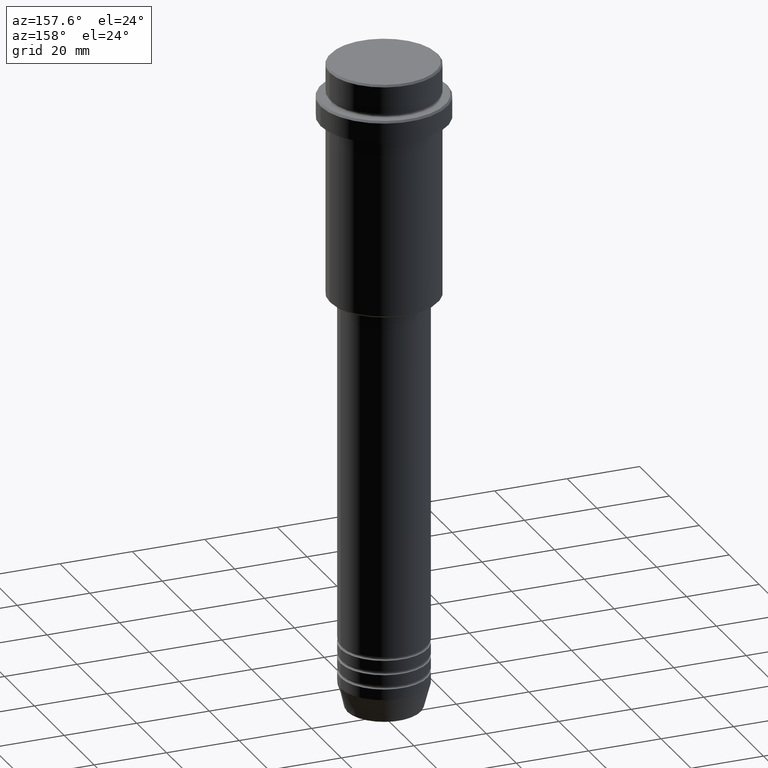
[diagram: clean part render]
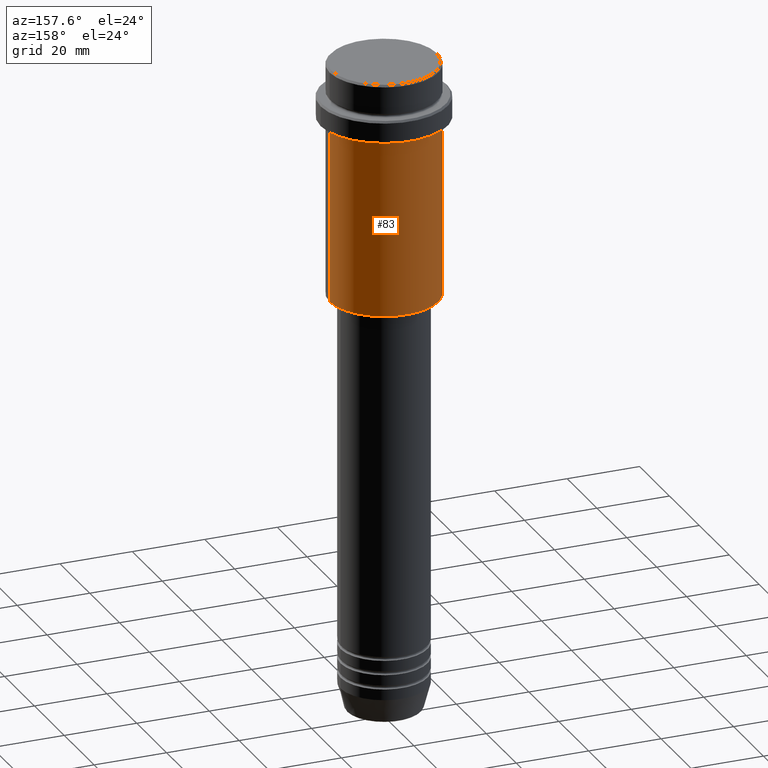
[diagram: same view with one face highlighted and labeled with its STEP entity id]
A machine part, auxiliary view. The second image highlights one B-rep face of the part: STEP entity #83.
In plain terms, the highlighted cylindrical surface (partial cylindrical patch) has radius 15 mm, axis along (-0, -0, 1).
Its self-contained STEP definition (entity closure, byte-faithful):
#81 = LINE ( 'NONE', #823, #1226 ) ;
#83 = ADVANCED_FACE ( 'NONE', ( #1091 ), #571, .T. ) ;
#183 = EDGE_CURVE ( 'NONE', #685, #401, #1261, .T. ) ;
#315 = VECTOR ( 'NONE', #321, 1000.000000000000000 ) ;
#321 = DIRECTION ( 'NONE',  ( -0.000000000000000000, -0.000000000000000000, 1.000000000000000000 ) ) ;
#401 = VERTEX_POINT ( 'NONE', #1202 ) ;
#430 = VERTEX_POINT ( 'NONE', #575 ) ;
#457 = EDGE_LOOP ( 'NONE', ( #695, #1222, #797, #715 ) ) ;
#465 = CARTESIAN_POINT ( 'NONE',  ( 0.000000000000000000, 0.000000000000000000, -64.50000000000001421 ) ) ;
#473 = DIRECTION ( 'NONE',  ( -0.000000000000000000, -0.000000000000000000, 1.000000000000000000 ) ) ;
#512 = DIRECTION ( 'NONE',  ( -0.000000000000000000, -0.000000000000000000, 1.000000000000000000 ) ) ;
#563 = DIRECTION ( 'NONE',  ( -0.000000000000000000, -0.000000000000000000, 1.000000000000000000 ) ) ;
#571 = CYLINDRICAL_SURFACE ( 'NONE', #1333, 15.00000000000000000 ) ;
#575 = CARTESIAN_POINT ( 'NONE',  ( -15.00000000000000000, 1.836970198721029589E-15, -64.50000000000001421 ) ) ;
#606 = EDGE_CURVE ( 'NONE', #1046, #685, #858, .T. ) ;
#685 = VERTEX_POINT ( 'NONE', #1010 ) ;
#695 = ORIENTED_EDGE ( 'NONE', *, *, #1154, .T. ) ;
#715 = ORIENTED_EDGE ( 'NONE', *, *, #606, .F. ) ;
#785 = AXIS2_PLACEMENT_3D ( 'NONE', #1089, #473, #1113 ) ;
#791 = AXIS2_PLACEMENT_3D ( 'NONE', #465, #1341, #1020 ) ;
#797 = ORIENTED_EDGE ( 'NONE', *, *, #183, .F. ) ;
#823 = CARTESIAN_POINT ( 'NONE',  ( -15.00000000000000000, 1.836970198721029589E-15, 0.000000000000000000 ) ) ;
#857 = CIRCLE ( 'NONE', #791, 15.00000000000000000 ) ;
#858 = LINE ( 'NONE', #1291, #315 ) ;
#995 = DIRECTION ( 'NONE',  ( 1.000000000000000000, 0.000000000000000000, 0.000000000000000000 ) ) ;
#1002 = CARTESIAN_POINT ( 'NONE',  ( 0.000000000000000000, 0.000000000000000000, 0.000000000000000000 ) ) ;
#1010 = CARTESIAN_POINT ( 'NONE',  ( 15.00000000000000178, 0.000000000000000000, -16.00000000000000000 ) ) ;
#1020 = DIRECTION ( 'NONE',  ( -1.000000000000000000, 0.000000000000000000, 0.000000000000000000 ) ) ;
#1046 = VERTEX_POINT ( 'NONE', #1326 ) ;
#1089 = CARTESIAN_POINT ( 'NONE',  ( 0.000000000000000000, 0.000000000000000000, -16.00000000000000000 ) ) ;
#1091 = FACE_OUTER_BOUND ( 'NONE', #457, .T. ) ;
#1113 = DIRECTION ( 'NONE',  ( 1.000000000000000000, 0.000000000000000000, 0.000000000000000000 ) ) ;
#1154 = EDGE_CURVE ( 'NONE', #1046, #430, #857, .T. ) ;
#1202 = CARTESIAN_POINT ( 'NONE',  ( -15.00000000000000355, 1.836970198721029983E-15, -16.00000000000000000 ) ) ;
#1222 = ORIENTED_EDGE ( 'NONE', *, *, #1275, .T. ) ;
#1226 = VECTOR ( 'NONE', #512, 1000.000000000000000 ) ;
#1261 = CIRCLE ( 'NONE', #785, 15.00000000000000178 ) ;
#1275 = EDGE_CURVE ( 'NONE', #430, #401, #81, .T. ) ;
#1291 = CARTESIAN_POINT ( 'NONE',  ( 15.00000000000000000, 0.000000000000000000, 0.000000000000000000 ) ) ;
#1326 = CARTESIAN_POINT ( 'NONE',  ( 15.00000000000000000, 0.000000000000000000, -64.50000000000001421 ) ) ;
#1333 = AXIS2_PLACEMENT_3D ( 'NONE', #1002, #563, #995 ) ;
#1341 = DIRECTION ( 'NONE',  ( -0.000000000000000000, -0.000000000000000000, 1.000000000000000000 ) ) ;